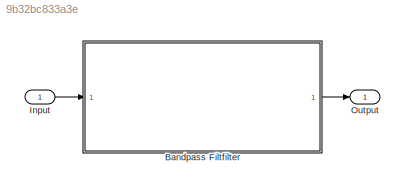
MODEL slx_9b32bc833a3e
KIND model
CONFIG AbsTol = auto
CONFIG EnableMultiTasking = off
CONFIG FixedStep = auto
CONFIG MaxStep = 1/fs
CONFIG MinStep = auto
CONFIG RelTol = 1e-3
CONFIG SampleTimeConstraint = Unconstrained
CONFIG Solver = VariableStepAuto
CONFIG SolverName = VariableStepAuto
CONFIG StartTime = 0.0
CONFIG StopTime = 2*sim_time
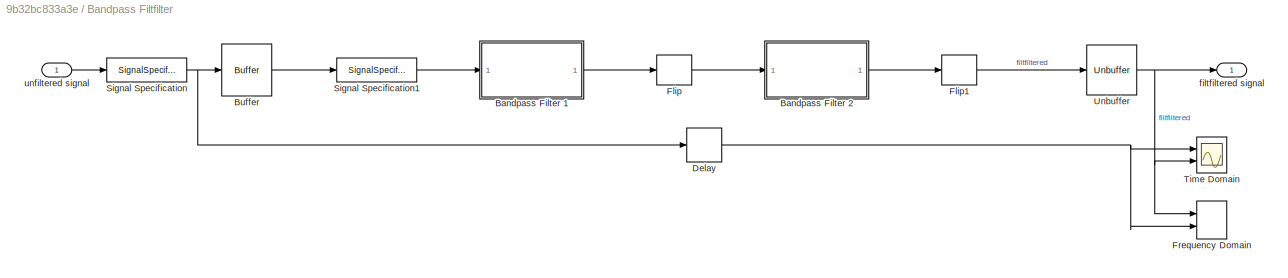
BLOCK [SubSystem] Bandpass Filtfilter
  Ports = [1, 1]
  RequestExecContextInheritance = off
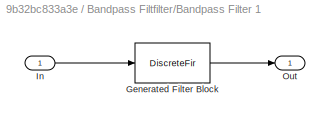
BLOCK [SubSystem] Bandpass Filtfilter/Bandpass Filter 1
  CopyFcn = fdesignblkfcn(gcbh, {'CopyFcn'});
  DialogController = fdesignblkfcn
  InitFcn = fdesignblkfcn(gcbh, {'InitFcn'});
  Ports = [1, 1]
  RequestExecContextInheritance = off
  UserDataPersistent = on
BLOCK [DiscreteFir] Bandpass Filtfilter/Bandpass Filter 1/Generated Filter Block
  Coefficients = [0.000776929510808441865 0.000512332418673175556 0.000649507731976822484 0.000783231605919231574 0.000905021318225751516 0.00100264600191827744 0.00106714069421589663 0.00108782432180463333 0.00105701691967496425 0.000965997146945759611 0.000815641873578770932 0.000602321505894979833 0.000332023194810092024 1.09800956927102187e-05 -0.000348637599893093211 -0.000733105289981374371 -0.00112487003962...<+23243ch>
  InputPortMap = u0
  InputProcessing = Columns as channels (frame based)
  OutputPortMap = o0
  Ports = [1, 1]
  Tag = BlockMethodSubSystem
BLOCK [Inport] Bandpass Filtfilter/Bandpass Filter 1/In
  IconDisplay = Port number
BLOCK [Outport] Bandpass Filtfilter/Bandpass Filter 1/Out
  IconDisplay = Port number
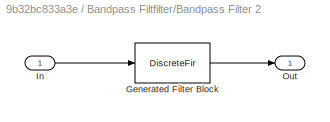
BLOCK [SubSystem] Bandpass Filtfilter/Bandpass Filter 2
  CopyFcn = fdesignblkfcn(gcbh, {'CopyFcn'});
  DialogController = fdesignblkfcn
  InitFcn = fdesignblkfcn(gcbh, {'InitFcn'});
  Ports = [1, 1]
  RequestExecContextInheritance = off
  UserDataPersistent = on
BLOCK [DiscreteFir] Bandpass Filtfilter/Bandpass Filter 2/Generated Filter Block
  Coefficients = [0.000776929510808441865 0.000512332418673175556 0.000649507731976822484 0.000783231605919231574 0.000905021318225751516 0.00100264600191827744 0.00106714069421589663 0.00108782432180463333 0.00105701691967496425 0.000965997146945759611 0.000815641873578770932 0.000602321505894979833 0.000332023194810092024 1.09800956927102187e-05 -0.000348637599893093211 -0.000733105289981374371 -0.00112487003962...<+23243ch>
  InputPortMap = u0
  InputProcessing = Columns as channels (frame based)
  OutputPortMap = o0
  Ports = [1, 1]
  Tag = BlockMethodSubSystem
BLOCK [Inport] Bandpass Filtfilter/Bandpass Filter 2/In
  IconDisplay = Port number
BLOCK [Outport] Bandpass Filtfilter/Bandpass Filter 2/Out
  IconDisplay = Port number
BLOCK [Buffer] Bandpass Filtfilter/Buffer
  N = tot_samples
  OutputFrames = off
BLOCK [Delay] Bandpass Filtfilter/Delay
  Commented = on
  DelayLength = tot_samples
  InputPortMap = u0
  Ports = [1, 1]
BLOCK [DSPFlip] Bandpass Filtfilter/Flip
BLOCK [DSPFlip] Bandpass Filtfilter/Flip1
BLOCK [SpectrumAnalyzer] Bandpass Filtfilter/Frequency Domain
  Commented = on
  NumInputPorts = 2
  Ports = [2]
  ScopeSpecificationString = spbscopes.SpectrumAnalyzerBlockCfg('CurrentConfiguration', extmgr.ConfigurationSet(extmgr.Configuration('Core','General UI',true),extmgr.Configuration('Core','Source UI',true),extmgr.Configuration('Sources','WiredSimulink',true),extmgr.Configuration('Visuals','Spectrum',true,'AxesProperties',struct('Color',{[0 0 0],[0 0 0]},'XColor',{[0.686274509803922 0.686274509803922 0.686274509803922],[0.68627...<+2080ch>
BLOCK [SignalSpecification] Bandpass Filtfilter/Signal Specification
  Dimensions = [1 1]
  SampleTime = 1/fs
BLOCK [SignalSpecification] Bandpass Filtfilter/Signal Specification1
  Dimensions = [tot_samples 1]
  SampleTime = sim_time
BLOCK [Scope] Bandpass Filtfilter/Time Domain
  Commented = on
  Floating = off
  NumInputPorts = 2
  Ports = [2]
  ScopeSpecificationString = Simulink.scopes.TimeScopeBlockCfg('CurrentConfiguration', extmgr.ConfigurationSet(extmgr.Configuration('Core','General UI',true),extmgr.Configuration('Core','Source UI',true),extmgr.Configuration('Sources','WiredSimulink',true,'DataLoggingVariableName','ScopeData1','DataLoggingMaxPoints','tot_samples'),extmgr.Configuration('Visuals','Time Domain',true,'SerializedDisplays',{struct('MinYLimReal','-0...<+1650ch>
BLOCK [Unbuffer] Bandpass Filtfilter/Unbuffer
  Ports = [1, 1]
BLOCK [Outport] Bandpass Filtfilter/filtfiltered signal
  IconDisplay = Port number
BLOCK [Inport] Bandpass Filtfilter/unfiltered signal
  IconDisplay = Port number
BLOCK [Inport] Input
  IconDisplay = Port number
  SampleTime = 1/fs
BLOCK [Outport] Output
  IconDisplay = Port number
LINE Bandpass Filtfilter/Bandpass Filter 1:1 -> Bandpass Filtfilter/Flip:1
LINE Bandpass Filtfilter/Bandpass Filter 2:1 -> Bandpass Filtfilter/Flip1:1
LINE Bandpass Filtfilter/Buffer:1 -> Bandpass Filtfilter/Signal Specification1:1
NET Bandpass Filtfilter/Delay:1 -> Bandpass Filtfilter/Frequency Domain:2, Bandpass Filtfilter/Time Domain:1
LINE Bandpass Filtfilter/Flip1:1 -> Bandpass Filtfilter/Unbuffer:1
LINE Bandpass Filtfilter/Flip:1 -> Bandpass Filtfilter/Bandpass Filter 2:1
LINE Bandpass Filtfilter/Signal Specification1:1 -> Bandpass Filtfilter/Bandpass Filter 1:1
NET Bandpass Filtfilter/Signal Specification:1 -> Bandpass Filtfilter/Buffer:1, Bandpass Filtfilter/Delay:1
NET Bandpass Filtfilter/Unbuffer:1 -> Bandpass Filtfilter/Frequency Domain:1, Bandpass Filtfilter/Time Domain:2, Bandpass Filtfilter/filtfiltered signal:1
LINE Bandpass Filtfilter/unfiltered signal:1 -> Bandpass Filtfilter/Signal Specification:1
LINE Bandpass Filtfilter:1 -> Output:1
LINE Input:1 -> Bandpass Filtfilter:1
note: NET lines group one-source signal fan-out (src -> all destinations, sorted); 1:1 wires keep LINE
